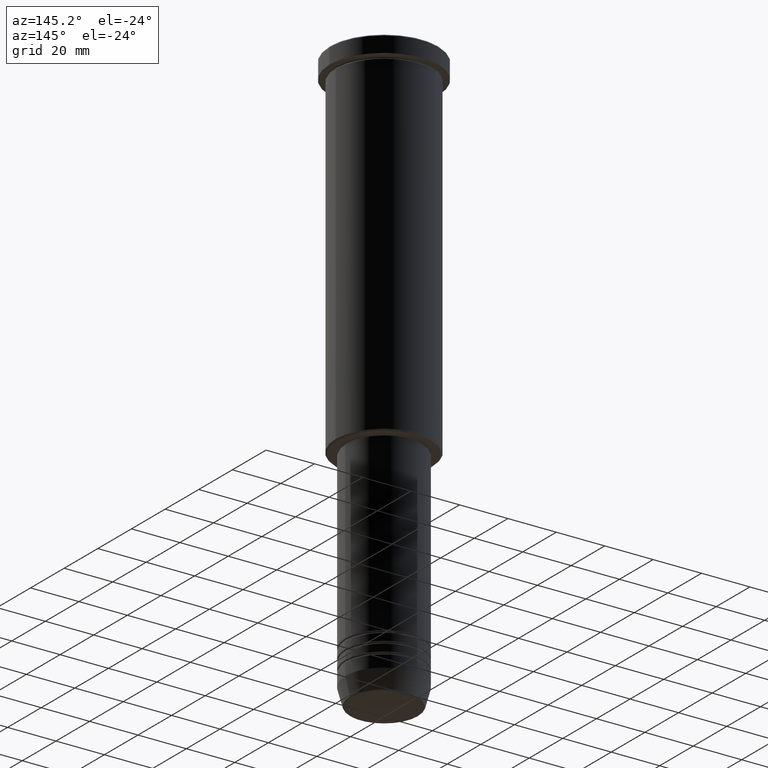
[diagram: clean part render]
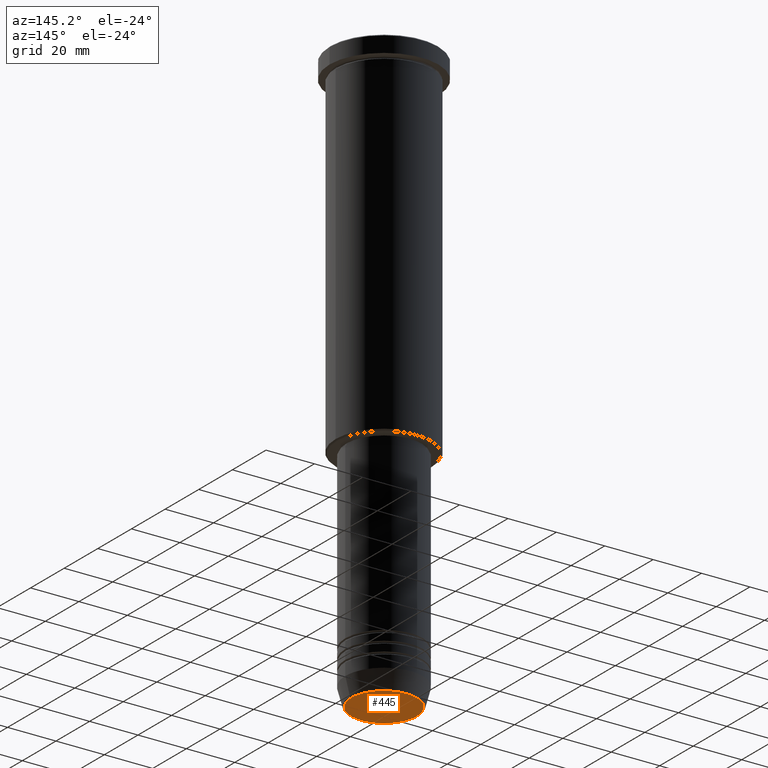
[diagram: same view with one face highlighted and labeled with its STEP entity id]
A machine part, auxiliary view. The second image highlights one B-rep face of the part: STEP entity #445.
In plain terms, the highlighted planar face has unit normal (0, -0, 1).
Its self-contained STEP definition (entity closure, byte-faithful):
#57 = CARTESIAN_POINT ( 'NONE',  ( -13.60671756277710109, 1.695915260300172047E-15, -240.0000000000000000 ) ) ;
#143 = DIRECTION ( 'NONE',  ( 0.000000000000000000, 0.000000000000000000, -1.000000000000000000 ) ) ;
#163 = AXIS2_PLACEMENT_3D ( 'NONE', #755, #204, #569 ) ;
#204 = DIRECTION ( 'NONE',  ( 0.000000000000000000, -0.000000000000000000, 1.000000000000000000 ) ) ;
#218 = AXIS2_PLACEMENT_3D ( 'NONE', #518, #143, #325 ) ;
#325 = DIRECTION ( 'NONE',  ( 1.000000000000000000, 0.000000000000000000, 0.000000000000000000 ) ) ;
#341 = CARTESIAN_POINT ( 'NONE',  ( 0.000000000000000000, 0.000000000000000000, -240.0000000000000000 ) ) ;
#375 = CIRCLE ( 'NONE', #473, 13.60671756277710109 ) ;
#410 = ORIENTED_EDGE ( 'NONE', *, *, #812, .T. ) ;
#430 = PLANE ( 'NONE',  #163 ) ;
#445 = ADVANCED_FACE ( 'NONE', ( #543 ), #430, .F. ) ;
#473 = AXIS2_PLACEMENT_3D ( 'NONE', #341, #1163, #715 ) ;
#518 = CARTESIAN_POINT ( 'NONE',  ( 0.000000000000000000, 0.000000000000000000, -240.0000000000000000 ) ) ;
#543 = FACE_OUTER_BOUND ( 'NONE', #880, .T. ) ;
#569 = DIRECTION ( 'NONE',  ( 1.000000000000000000, 0.000000000000000000, 0.000000000000000000 ) ) ;
#715 = DIRECTION ( 'NONE',  ( 1.000000000000000000, 0.000000000000000000, 0.000000000000000000 ) ) ;
#716 = EDGE_CURVE ( 'NONE', #726, #928, #740, .T. ) ;
#726 = VERTEX_POINT ( 'NONE', #57 ) ;
#728 = ORIENTED_EDGE ( 'NONE', *, *, #716, .T. ) ;
#740 = CIRCLE ( 'NONE', #218, 13.60671756277710109 ) ;
#755 = CARTESIAN_POINT ( 'NONE',  ( 0.000000000000000000, 0.000000000000000000, -240.0000000000000000 ) ) ;
#812 = EDGE_CURVE ( 'NONE', #928, #726, #375, .T. ) ;
#841 = CARTESIAN_POINT ( 'NONE',  ( 13.60671756277710109, 0.000000000000000000, -240.0000000000000000 ) ) ;
#880 = EDGE_LOOP ( 'NONE', ( #410, #728 ) ) ;
#928 = VERTEX_POINT ( 'NONE', #841 ) ;
#1163 = DIRECTION ( 'NONE',  ( 0.000000000000000000, 0.000000000000000000, -1.000000000000000000 ) ) ;